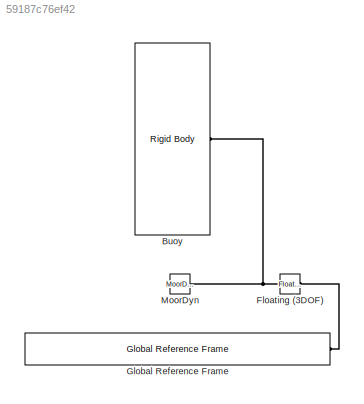
MODEL slx_59187c76ef42
KIND model
CONFIG AbsTol = auto
CONFIG EnableMultiTasking = on
CONFIG FixedStep = 0.01
CONFIG MaxStep = 0.01
CONFIG MinStep = auto
CONFIG RelTol = 1e-3
CONFIG SampleTimeConstraint = Unconstrained
CONFIG SolverName = ode4
CONFIG StartTime = 0
CONFIG StopTime = 100
BLOCK [Reference] Buoy  REF=WECSim_Lib_Body_Elements/Rigid Body
  AttributesFormatString = %<body>
  Ports = [0, 0, 0, 0, 0, 0, 1]
  SourceBlock = WECSim_Lib_Body_Elements/Rigid Body
  SourceType = Rigid Body
BLOCK [Reference] Floating (3DOF)  REF=WECSim_Lib_Constraints/Floating (3DOF)
  AttributesFormatString = %<constraint>
  Ports = [0, 0, 0, 0, 0, 1, 1]
  SourceBlock = WECSim_Lib_Constraints/Floating (3DOF)
  SourceType = Constraints
BLOCK [Reference] Global Reference Frame  REF=WECSim_Lib_Frames/Global Reference Frame
  Ports = [0, 0, 0, 0, 0, 0, 1]
  SourceBlock = WECSim_Lib_Frames/Global Reference Frame
  SourceProductName = WEC-Sim
  SourceType = Frames
BLOCK [Reference] MoorDyn  REF=WECSim_Lib_Moorings/MoorDyn
  AttributesFormatString = %<mooring>
  Ports = [0, 0, 0, 0, 0, 1]
  SourceBlock = WECSim_Lib_Moorings/MoorDyn
  SourceType = MoorDyn
PNET net1: Buoy:RConn1 -- Floating (3DOF):LConn1 -- MoorDyn:LConn1
PLINE Floating (3DOF):RConn1 -- Global Reference Frame:RConn1
note: PNET lines group multi-terminal physical nets as a canonical sorted terminal list (undirected conserving connections); 2-terminal nets keep the pairwise PLINE form
